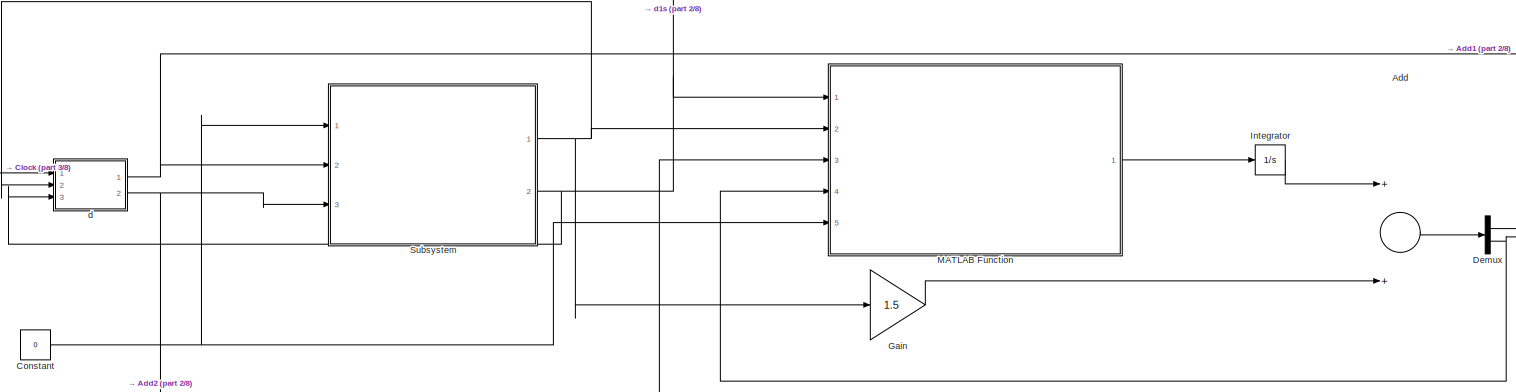
[diagram: root canvas - part 1/8, top left region]
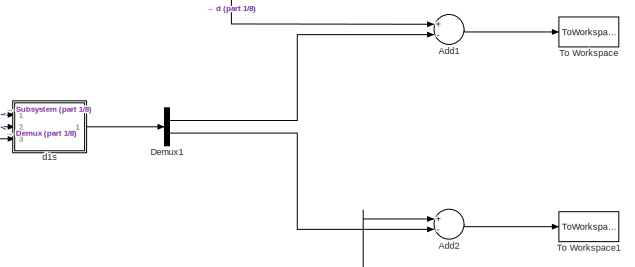
[diagram: root canvas - part 2/8, top center region]
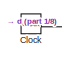
[diagram: root canvas - part 3/8, top left region]
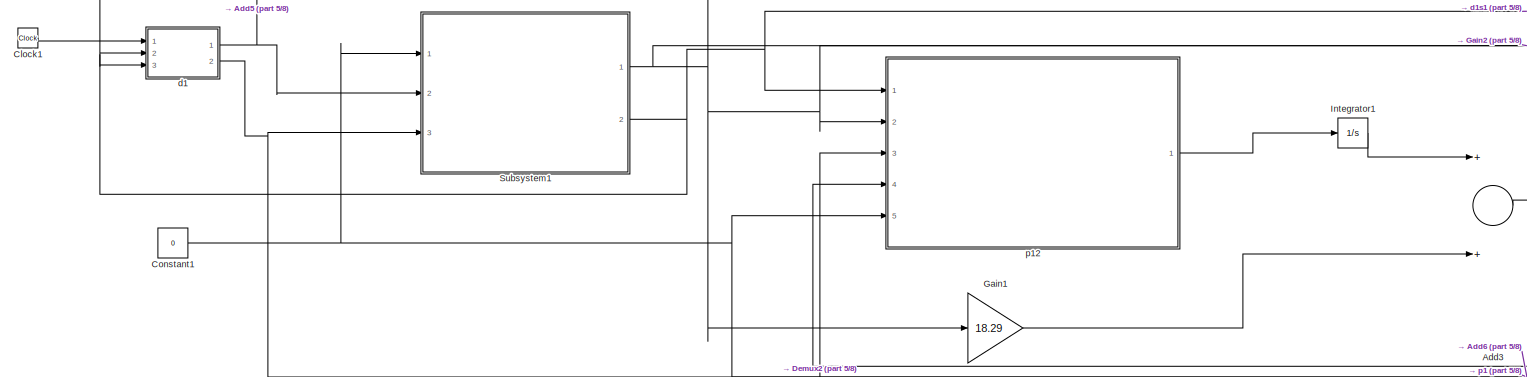
[diagram: root canvas - part 4/8, middle left region]
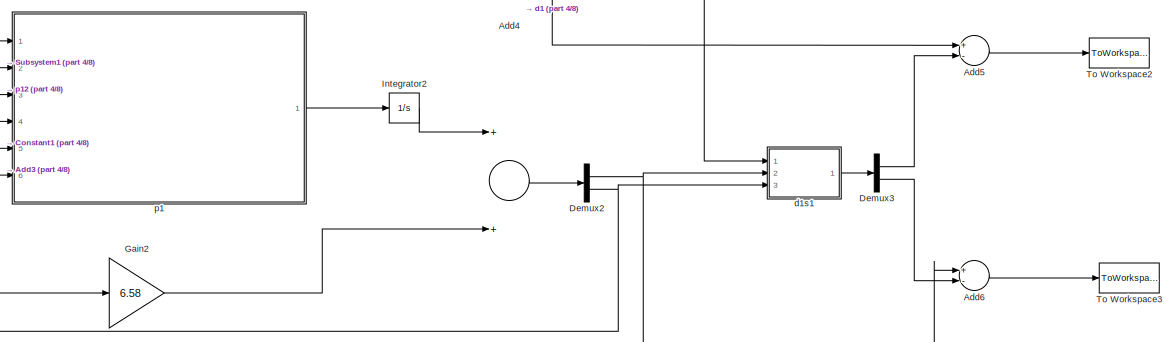
[diagram: root canvas - part 5/8, central region]
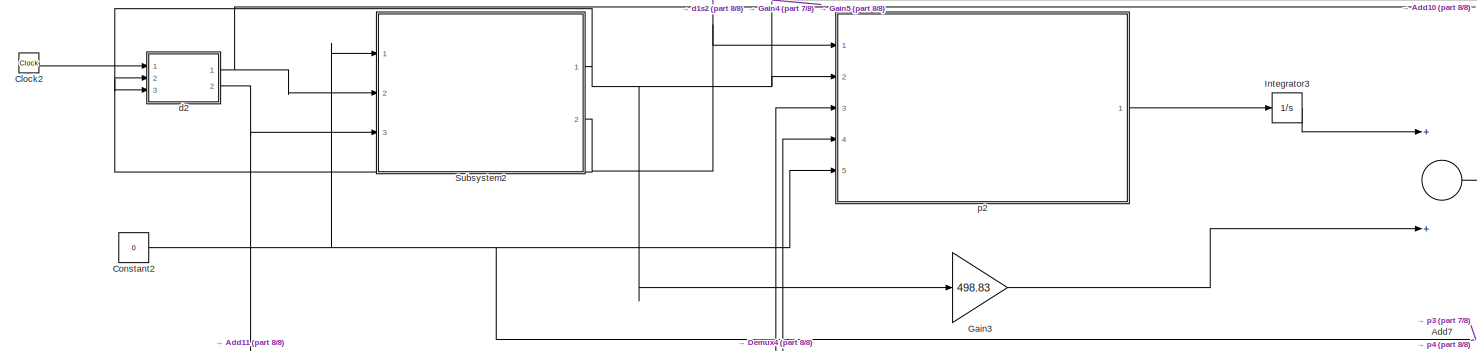
[diagram: root canvas - part 6/8, bottom left region]
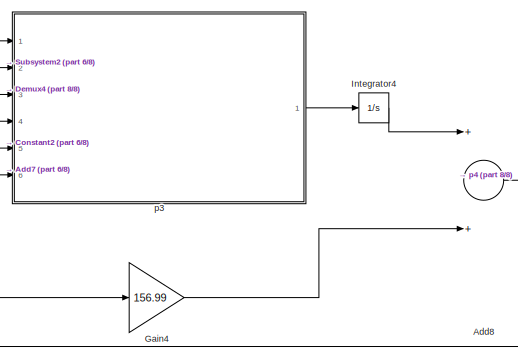
[diagram: root canvas - part 7/8, bottom center region]
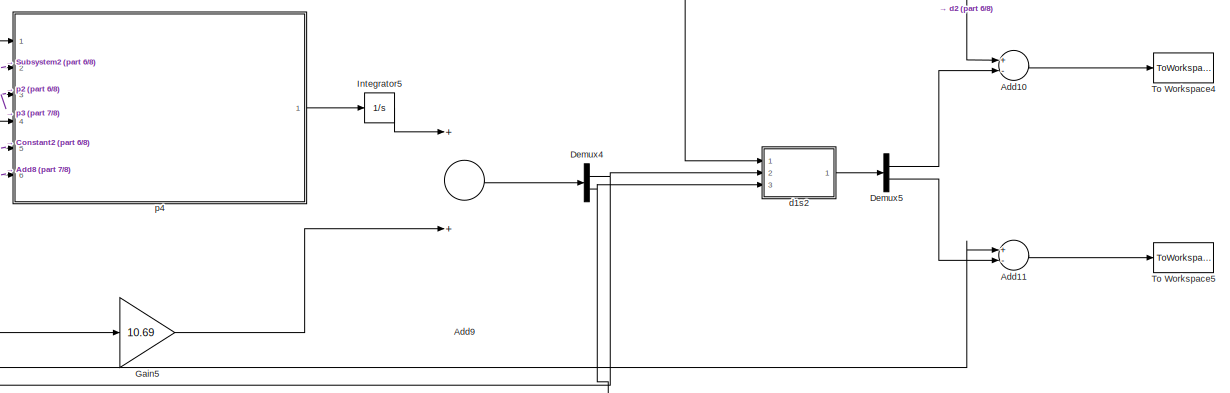
[diagram: root canvas - part 8/8, bottom right region]
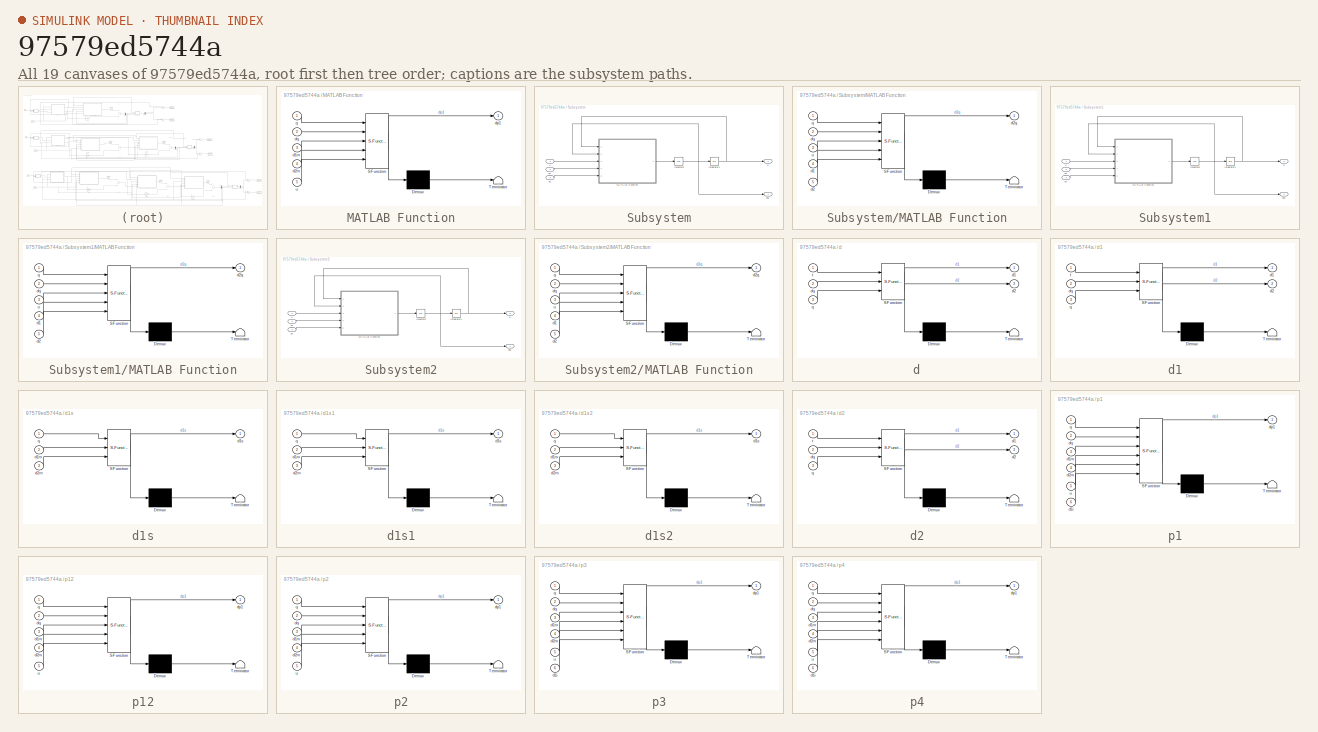
[diagram: thumbnail index - all 19 canvases of the model, root first then tree order]
MODEL slx_97579ed5744a
KIND model
CONFIG AbsTol = auto
CONFIG EnableMultiTasking = off
CONFIG FixedStep = 0.0025
CONFIG MaxStep = auto
CONFIG MinStep = auto
CONFIG RelTol = 1e-3
CONFIG SampleTimeConstraint = Unconstrained
CONFIG Solver = FixedStepAuto
CONFIG SolverName = FixedStepAuto
CONFIG StartTime = 0.0
CONFIG StopTime = 25
BLOCK [Sum] Add
  InputSameDT = off
  OutDataTypeStr = Inherit: Inherit via internal rule
  Ports = [2, 1]
  SaturateOnIntegerOverflow = off
BLOCK [Sum] Add1
  InputSameDT = off
  Inputs = +-
  OutDataTypeStr = Inherit: Inherit via internal rule
  Ports = [2, 1]
  SaturateOnIntegerOverflow = off
BLOCK [Sum] Add10
  InputSameDT = off
  Inputs = +-
  OutDataTypeStr = Inherit: Inherit via internal rule
  Ports = [2, 1]
  SaturateOnIntegerOverflow = off
BLOCK [Sum] Add11
  InputSameDT = off
  Inputs = +-
  OutDataTypeStr = Inherit: Inherit via internal rule
  Ports = [2, 1]
  SaturateOnIntegerOverflow = off
BLOCK [Sum] Add2
  InputSameDT = off
  Inputs = +-
  OutDataTypeStr = Inherit: Inherit via internal rule
  Ports = [2, 1]
  SaturateOnIntegerOverflow = off
BLOCK [Sum] Add3
  InputSameDT = off
  OutDataTypeStr = Inherit: Inherit via internal rule
  Ports = [2, 1]
  SaturateOnIntegerOverflow = off
BLOCK [Sum] Add4
  InputSameDT = off
  OutDataTypeStr = Inherit: Inherit via internal rule
  Ports = [2, 1]
  SaturateOnIntegerOverflow = off
BLOCK [Sum] Add5
  InputSameDT = off
  Inputs = +-
  OutDataTypeStr = Inherit: Inherit via internal rule
  Ports = [2, 1]
  SaturateOnIntegerOverflow = off
BLOCK [Sum] Add6
  InputSameDT = off
  Inputs = +-
  OutDataTypeStr = Inherit: Inherit via internal rule
  Ports = [2, 1]
  SaturateOnIntegerOverflow = off
BLOCK [Sum] Add7
  InputSameDT = off
  OutDataTypeStr = Inherit: Inherit via internal rule
  Ports = [2, 1]
  SaturateOnIntegerOverflow = off
BLOCK [Sum] Add8
  InputSameDT = off
  OutDataTypeStr = Inherit: Inherit via internal rule
  Ports = [2, 1]
  SaturateOnIntegerOverflow = off
BLOCK [Sum] Add9
  InputSameDT = off
  OutDataTypeStr = Inherit: Inherit via internal rule
  Ports = [2, 1]
  SaturateOnIntegerOverflow = off
BLOCK [Clock] Clock
BLOCK [Clock] Clock1
BLOCK [Clock] Clock2
BLOCK [Constant] Constant
  Value = 0
BLOCK [Constant] Constant1
  Value = 0
BLOCK [Constant] Constant2
  Value = 0
BLOCK [Demux] Demux
  DisplayOption = bar
  Outputs = 2
  Ports = [1, 2]
BLOCK [Demux] Demux1
  DisplayOption = bar
  Outputs = 2
  Ports = [1, 2]
BLOCK [Demux] Demux2
  DisplayOption = bar
  Outputs = 2
  Ports = [1, 2]
BLOCK [Demux] Demux3
  DisplayOption = bar
  Outputs = 2
  Ports = [1, 2]
BLOCK [Demux] Demux4
  DisplayOption = bar
  Outputs = 2
  Ports = [1, 2]
BLOCK [Demux] Demux5
  DisplayOption = bar
  Outputs = 2
  Ports = [1, 2]
BLOCK [Gain] Gain
  Gain = 1.5
  OutDataTypeStr = Inherit: Inherit via internal rule
  ParamDataTypeStr = Inherit: Inherit via internal rule
  SaturateOnIntegerOverflow = off
BLOCK [Gain] Gain1
  Gain = 18.29
  OutDataTypeStr = Inherit: Inherit via internal rule
  ParamDataTypeStr = Inherit: Inherit via internal rule
  SaturateOnIntegerOverflow = off
BLOCK [Gain] Gain2
  Gain = 6.58
  OutDataTypeStr = Inherit: Inherit via internal rule
  ParamDataTypeStr = Inherit: Inherit via internal rule
  SaturateOnIntegerOverflow = off
BLOCK [Gain] Gain3
  Gain = 498.83
  OutDataTypeStr = Inherit: Inherit via internal rule
  ParamDataTypeStr = Inherit: Inherit via internal rule
  SaturateOnIntegerOverflow = off
BLOCK [Gain] Gain4
  Gain = 156.99
  OutDataTypeStr = Inherit: Inherit via internal rule
  ParamDataTypeStr = Inherit: Inherit via internal rule
  SaturateOnIntegerOverflow = off
BLOCK [Gain] Gain5
  Gain = 10.69
  OutDataTypeStr = Inherit: Inherit via internal rule
  ParamDataTypeStr = Inherit: Inherit via internal rule
  SaturateOnIntegerOverflow = off
BLOCK [Integrator] Integrator
  InitialCondition = [0;0]
  Ports = [1, 1]
BLOCK [Integrator] Integrator1
  InitialCondition = [0;0]
  Ports = [1, 1]
BLOCK [Integrator] Integrator2
  InitialCondition = [0;0]
  Ports = [1, 1]
BLOCK [Integrator] Integrator3
  InitialCondition = [0;0]
  Ports = [1, 1]
BLOCK [Integrator] Integrator4
  InitialCondition = [0;0]
  Ports = [1, 1]
BLOCK [Integrator] Integrator5
  InitialCondition = [0;0]
  Ports = [1, 1]
BLOCK [SubSystem] MATLAB Function
  ErrorFcn = Stateflow.Translate.translate
  PermitHierarchicalResolution = ExplicitOnly
  Ports = [5, 1]
  RequestExecContextInheritance = off
  SFBlockType = MATLAB Function
  TreatAsAtomicUnit = on
BLOCK [Demux] MATLAB Function/ Demux 
  Outputs = 1
  Ports = [1, 1]
BLOCK [S-Function] MATLAB Function/ SFunction 
  EnableBusSupport = on
  FunctionName = sf_sfun
  PortCounts = [5 2]
  Ports = [5, 2]
  SFcnIsStateOwnerBlock = off
  SFunctionDeploymentMode = off
  Tag = Stateflow S-Function HODB 1
BLOCK [Terminator] MATLAB Function/ Terminator 
BLOCK [Inport] MATLAB Function/d1m
  IconDisplay = Port number
  Port = 3
BLOCK [Inport] MATLAB Function/d2m
  IconDisplay = Port number
  Port = 4
BLOCK [Outport] MATLAB Function/dp1
  IconDisplay = Port number
BLOCK [Inport] MATLAB Function/dq
  IconDisplay = Port number
  Port = 2
BLOCK [Inport] MATLAB Function/q
  IconDisplay = Port number
BLOCK [Inport] MATLAB Function/u
  IconDisplay = Port number
  Port = 5
BLOCK [SubSystem] Subsystem
  Ports = [3, 2]
  RequestExecContextInheritance = off
BLOCK [Integrator] Subsystem/Integrator
  InitialCondition = [-0.01;0.05]
  Ports = [1, 1]
BLOCK [Integrator] Subsystem/Integrator1
  InitialCondition = [-1.4208;-0.1]
  Ports = [1, 1]
BLOCK [SubSystem] Subsystem/MATLAB Function
  ErrorFcn = Stateflow.Translate.translate
  PermitHierarchicalResolution = ExplicitOnly
  Ports = [5, 1]
  RequestExecContextInheritance = off
  SFBlockType = MATLAB Function
  TreatAsAtomicUnit = on
BLOCK [Demux] Subsystem/MATLAB Function/ Demux 
  Outputs = 1
  Ports = [1, 1]
BLOCK [S-Function] Subsystem/MATLAB Function/ SFunction 
  EnableBusSupport = on
  FunctionName = sf_sfun
  PortCounts = [5 2]
  Ports = [5, 2]
  SFcnIsStateOwnerBlock = off
  SFunctionDeploymentMode = off
  Tag = Stateflow S-Function HODB 2
BLOCK [Terminator] Subsystem/MATLAB Function/ Terminator 
BLOCK [Inport] Subsystem/MATLAB Function/d1
  IconDisplay = Port number
  Port = 4
BLOCK [Inport] Subsystem/MATLAB Function/d2
  IconDisplay = Port number
  Port = 5
BLOCK [Outport] Subsystem/MATLAB Function/d2q
  IconDisplay = Port number
BLOCK [Inport] Subsystem/MATLAB Function/dq
  IconDisplay = Port number
  Port = 2
BLOCK [Inport] Subsystem/MATLAB Function/q
  IconDisplay = Port number
BLOCK [Inport] Subsystem/MATLAB Function/u
  IconDisplay = Port number
  Port = 3
BLOCK [Inport] Subsystem/d1
  IconDisplay = Port number
  Port = 2
BLOCK [Inport] Subsystem/d2
  IconDisplay = Port number
  Port = 3
BLOCK [Outport] Subsystem/dq1
  IconDisplay = Port number
BLOCK [Outport] Subsystem/q
  IconDisplay = Port number
  Port = 2
BLOCK [Inport] Subsystem/u
  IconDisplay = Port number
BLOCK [SubSystem] Subsystem1
  Ports = [3, 2]
  RequestExecContextInheritance = off
BLOCK [Integrator] Subsystem1/Integrator
  InitialCondition = [-0.01;0.05]
  Ports = [1, 1]
BLOCK [Integrator] Subsystem1/Integrator1
  InitialCondition = [-1.4208;-0.1]
  Ports = [1, 1]
BLOCK [SubSystem] Subsystem1/MATLAB Function
  ErrorFcn = Stateflow.Translate.translate
  PermitHierarchicalResolution = ExplicitOnly
  Ports = [5, 1]
  RequestExecContextInheritance = off
  SFBlockType = MATLAB Function
  TreatAsAtomicUnit = on
BLOCK [Demux] Subsystem1/MATLAB Function/ Demux 
  Outputs = 1
  Ports = [1, 1]
BLOCK [S-Function] Subsystem1/MATLAB Function/ SFunction 
  EnableBusSupport = on
  FunctionName = sf_sfun
  PortCounts = [5 2]
  Ports = [5, 2]
  SFcnIsStateOwnerBlock = off
  SFunctionDeploymentMode = off
  Tag = Stateflow S-Function HODB 5
BLOCK [Terminator] Subsystem1/MATLAB Function/ Terminator 
BLOCK [Inport] Subsystem1/MATLAB Function/d1
  IconDisplay = Port number
  Port = 4
BLOCK [Inport] Subsystem1/MATLAB Function/d2
  IconDisplay = Port number
  Port = 5
BLOCK [Outport] Subsystem1/MATLAB Function/d2q
  IconDisplay = Port number
BLOCK [Inport] Subsystem1/MATLAB Function/dq
  IconDisplay = Port number
  Port = 2
BLOCK [Inport] Subsystem1/MATLAB Function/q
  IconDisplay = Port number
BLOCK [Inport] Subsystem1/MATLAB Function/u
  IconDisplay = Port number
  Port = 3
BLOCK [Inport] Subsystem1/d1
  IconDisplay = Port number
  Port = 2
BLOCK [Inport] Subsystem1/d2
  IconDisplay = Port number
  Port = 3
BLOCK [Outport] Subsystem1/dq1
  IconDisplay = Port number
BLOCK [Outport] Subsystem1/q
  IconDisplay = Port number
  Port = 2
BLOCK [Inport] Subsystem1/u
  IconDisplay = Port number
BLOCK [SubSystem] Subsystem2
  Ports = [3, 2]
  RequestExecContextInheritance = off
BLOCK [Integrator] Subsystem2/Integrator
  InitialCondition = [-0.01;0.05]
  Ports = [1, 1]
BLOCK [Integrator] Subsystem2/Integrator1
  InitialCondition = [-1.4208;-0.1]
  Ports = [1, 1]
BLOCK [SubSystem] Subsystem2/MATLAB Function
  ErrorFcn = Stateflow.Translate.translate
  PermitHierarchicalResolution = ExplicitOnly
  Ports = [5, 1]
  RequestExecContextInheritance = off
  SFBlockType = MATLAB Function
  TreatAsAtomicUnit = on
BLOCK [Demux] Subsystem2/MATLAB Function/ Demux 
  Outputs = 1
  Ports = [1, 1]
BLOCK [S-Function] Subsystem2/MATLAB Function/ SFunction 
  EnableBusSupport = on
  FunctionName = sf_sfun
  PortCounts = [5 2]
  Ports = [5, 2]
  SFcnIsStateOwnerBlock = off
  SFunctionDeploymentMode = off
  Tag = Stateflow S-Function HODB 11
BLOCK [Terminator] Subsystem2/MATLAB Function/ Terminator 
BLOCK [Inport] Subsystem2/MATLAB Function/d1
  IconDisplay = Port number
  Port = 4
BLOCK [Inport] Subsystem2/MATLAB Function/d2
  IconDisplay = Port number
  Port = 5
BLOCK [Outport] Subsystem2/MATLAB Function/d2q
  IconDisplay = Port number
BLOCK [Inport] Subsystem2/MATLAB Function/dq
  IconDisplay = Port number
  Port = 2
BLOCK [Inport] Subsystem2/MATLAB Function/q
  IconDisplay = Port number
BLOCK [Inport] Subsystem2/MATLAB Function/u
  IconDisplay = Port number
  Port = 3
BLOCK [Inport] Subsystem2/d1
  IconDisplay = Port number
  Port = 2
BLOCK [Inport] Subsystem2/d2
  IconDisplay = Port number
  Port = 3
BLOCK [Outport] Subsystem2/dq1
  IconDisplay = Port number
BLOCK [Outport] Subsystem2/q
  IconDisplay = Port number
  Port = 2
BLOCK [Inport] Subsystem2/u
  IconDisplay = Port number
BLOCK [ToWorkspace] To Workspace
  FixptAsFi = on
  MaxDataPoints = inf
  Ports = [1]
  SampleTime = -1
  Save2DSignal = 3-D array (concatenate along third dimension)
  VariableName = q11II
BLOCK [ToWorkspace] To Workspace1
  FixptAsFi = on
  MaxDataPoints = inf
  Ports = [1]
  SampleTime = -1
  Save2DSignal = 3-D array (concatenate along third dimension)
  VariableName = q21II
BLOCK [ToWorkspace] To Workspace2
  FixptAsFi = on
  MaxDataPoints = inf
  Ports = [1]
  SampleTime = -1
  Save2DSignal = 3-D array (concatenate along third dimension)
  VariableName = q12II
BLOCK [ToWorkspace] To Workspace3
  FixptAsFi = on
  MaxDataPoints = inf
  Ports = [1]
  SampleTime = -1
  Save2DSignal = 3-D array (concatenate along third dimension)
  VariableName = q22II
BLOCK [ToWorkspace] To Workspace4
  FixptAsFi = on
  MaxDataPoints = inf
  Ports = [1]
  SampleTime = -1
  Save2DSignal = 3-D array (concatenate along third dimension)
  VariableName = q13II
BLOCK [ToWorkspace] To Workspace5
  FixptAsFi = on
  MaxDataPoints = inf
  Ports = [1]
  SampleTime = -1
  Save2DSignal = 3-D array (concatenate along third dimension)
  VariableName = q23II
BLOCK [SubSystem] d
  ErrorFcn = Stateflow.Translate.translate
  PermitHierarchicalResolution = ExplicitOnly
  Ports = [3, 2]
  RequestExecContextInheritance = off
  SFBlockType = MATLAB Function
  TreatAsAtomicUnit = on
BLOCK [Demux] d/ Demux 
  Outputs = 1
  Ports = [1, 1]
BLOCK [S-Function] d/ SFunction 
  EnableBusSupport = on
  FunctionName = sf_sfun
  PortCounts = [3 3]
  Ports = [3, 3]
  SFcnIsStateOwnerBlock = off
  SFunctionDeploymentMode = off
  Tag = Stateflow S-Function HODB 3
BLOCK [Terminator] d/ Terminator 
BLOCK [Outport] d/d1
  IconDisplay = Port number
BLOCK [Outport] d/d2
  IconDisplay = Port number
  Port = 2
BLOCK [Inport] d/dq
  IconDisplay = Port number
  Port = 2
BLOCK [Inport] d/q
  IconDisplay = Port number
  Port = 3
BLOCK [Inport] d/t
  IconDisplay = Port number
BLOCK [SubSystem] d1
  ErrorFcn = Stateflow.Translate.translate
  PermitHierarchicalResolution = ExplicitOnly
  Ports = [3, 2]
  RequestExecContextInheritance = off
  SFBlockType = MATLAB Function
  TreatAsAtomicUnit = on
BLOCK [Demux] d1/ Demux 
  Outputs = 1
  Ports = [1, 1]
BLOCK [S-Function] d1/ SFunction 
  EnableBusSupport = on
  FunctionName = sf_sfun
  PortCounts = [3 3]
  Ports = [3, 3]
  SFcnIsStateOwnerBlock = off
  SFunctionDeploymentMode = off
  Tag = Stateflow S-Function HODB 6
BLOCK [Terminator] d1/ Terminator 
BLOCK [Outport] d1/d1
  IconDisplay = Port number
BLOCK [Outport] d1/d2
  IconDisplay = Port number
  Port = 2
BLOCK [Inport] d1/dq
  IconDisplay = Port number
  Port = 2
BLOCK [Inport] d1/q
  IconDisplay = Port number
  Port = 3
BLOCK [Inport] d1/t
  IconDisplay = Port number
BLOCK [SubSystem] d1s
  ErrorFcn = Stateflow.Translate.translate
  PermitHierarchicalResolution = ExplicitOnly
  Ports = [3, 1]
  RequestExecContextInheritance = off
  SFBlockType = MATLAB Function
  TreatAsAtomicUnit = on
BLOCK [Demux] d1s/ Demux 
  Outputs = 1
  Ports = [1, 1]
BLOCK [S-Function] d1s/ SFunction 
  EnableBusSupport = on
  FunctionName = sf_sfun
  PortCounts = [3 2]
  Ports = [3, 2]
  SFcnIsStateOwnerBlock = off
  SFunctionDeploymentMode = off
  Tag = Stateflow S-Function HODB 4
BLOCK [Terminator] d1s/ Terminator 
BLOCK [Inport] d1s/d1m
  IconDisplay = Port number
  Port = 2
BLOCK [Outport] d1s/d1s
  IconDisplay = Port number
BLOCK [Inport] d1s/d2m
  IconDisplay = Port number
  Port = 3
BLOCK [Inport] d1s/q
  IconDisplay = Port number
BLOCK [SubSystem] d1s1
  ErrorFcn = Stateflow.Translate.translate
  PermitHierarchicalResolution = ExplicitOnly
  Ports = [3, 1]
  RequestExecContextInheritance = off
  SFBlockType = MATLAB Function
  TreatAsAtomicUnit = on
BLOCK [Demux] d1s1/ Demux 
  Outputs = 1
  Ports = [1, 1]
BLOCK [S-Function] d1s1/ SFunction 
  EnableBusSupport = on
  FunctionName = sf_sfun
  PortCounts = [3 2]
  Ports = [3, 2]
  SFcnIsStateOwnerBlock = off
  SFunctionDeploymentMode = off
  Tag = Stateflow S-Function HODB 9
BLOCK [Terminator] d1s1/ Terminator 
BLOCK [Inport] d1s1/d1m
  IconDisplay = Port number
  Port = 2
BLOCK [Outport] d1s1/d1s
  IconDisplay = Port number
BLOCK [Inport] d1s1/d2m
  IconDisplay = Port number
  Port = 3
BLOCK [Inport] d1s1/q
  IconDisplay = Port number
BLOCK [SubSystem] d1s2
  ErrorFcn = Stateflow.Translate.translate
  PermitHierarchicalResolution = ExplicitOnly
  Ports = [3, 1]
  RequestExecContextInheritance = off
  SFBlockType = MATLAB Function
  TreatAsAtomicUnit = on
BLOCK [Demux] d1s2/ Demux 
  Outputs = 1
  Ports = [1, 1]
BLOCK [S-Function] d1s2/ SFunction 
  EnableBusSupport = on
  FunctionName = sf_sfun
  PortCounts = [3 2]
  Ports = [3, 2]
  SFcnIsStateOwnerBlock = off
  SFunctionDeploymentMode = off
  Tag = Stateflow S-Function HODB 15
BLOCK [Terminator] d1s2/ Terminator 
BLOCK [Inport] d1s2/d1m
  IconDisplay = Port number
  Port = 2
BLOCK [Outport] d1s2/d1s
  IconDisplay = Port number
BLOCK [Inport] d1s2/d2m
  IconDisplay = Port number
  Port = 3
BLOCK [Inport] d1s2/q
  IconDisplay = Port number
BLOCK [SubSystem] d2
  ErrorFcn = Stateflow.Translate.translate
  PermitHierarchicalResolution = ExplicitOnly
  Ports = [3, 2]
  RequestExecContextInheritance = off
  SFBlockType = MATLAB Function
  TreatAsAtomicUnit = on
BLOCK [Demux] d2/ Demux 
  Outputs = 1
  Ports = [1, 1]
BLOCK [S-Function] d2/ SFunction 
  EnableBusSupport = on
  FunctionName = sf_sfun
  PortCounts = [3 3]
  Ports = [3, 3]
  SFcnIsStateOwnerBlock = off
  SFunctionDeploymentMode = off
  Tag = Stateflow S-Function HODB 12
BLOCK [Terminator] d2/ Terminator 
BLOCK [Outport] d2/d1
  IconDisplay = Port number
BLOCK [Outport] d2/d2
  IconDisplay = Port number
  Port = 2
BLOCK [Inport] d2/dq
  IconDisplay = Port number
  Port = 2
BLOCK [Inport] d2/q
  IconDisplay = Port number
  Port = 3
BLOCK [Inport] d2/t
  IconDisplay = Port number
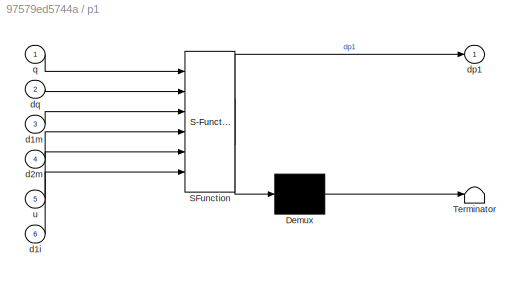
BLOCK [SubSystem] p1
  ErrorFcn = Stateflow.Translate.translate
  PermitHierarchicalResolution = ExplicitOnly
  Ports = [6, 1]
  RequestExecContextInheritance = off
  SFBlockType = MATLAB Function
  TreatAsAtomicUnit = on
BLOCK [Demux] p1/ Demux 
  Outputs = 1
  Ports = [1, 1]
BLOCK [S-Function] p1/ SFunction 
  EnableBusSupport = on
  FunctionName = sf_sfun
  PortCounts = [6 2]
  Ports = [6, 2]
  SFcnIsStateOwnerBlock = off
  SFunctionDeploymentMode = off
  Tag = Stateflow S-Function HODB 8
BLOCK [Terminator] p1/ Terminator 
BLOCK [Inport] p1/d1i
  IconDisplay = Port number
  Port = 6
BLOCK [Inport] p1/d1m
  IconDisplay = Port number
  Port = 3
BLOCK [Inport] p1/d2m
  IconDisplay = Port number
  Port = 4
BLOCK [Outport] p1/dp1
  IconDisplay = Port number
BLOCK [Inport] p1/dq
  IconDisplay = Port number
  Port = 2
BLOCK [Inport] p1/q
  IconDisplay = Port number
BLOCK [Inport] p1/u
  IconDisplay = Port number
  Port = 5
BLOCK [SubSystem] p12
  ErrorFcn = Stateflow.Translate.translate
  PermitHierarchicalResolution = ExplicitOnly
  Ports = [5, 1]
  RequestExecContextInheritance = off
  SFBlockType = MATLAB Function
  TreatAsAtomicUnit = on
BLOCK [Demux] p12/ Demux 
  Outputs = 1
  Ports = [1, 1]
BLOCK [S-Function] p12/ SFunction 
  EnableBusSupport = on
  FunctionName = sf_sfun
  PortCounts = [5 2]
  Ports = [5, 2]
  SFcnIsStateOwnerBlock = off
  SFunctionDeploymentMode = off
  Tag = Stateflow S-Function HODB 7
BLOCK [Terminator] p12/ Terminator 
BLOCK [Inport] p12/d1m
  IconDisplay = Port number
  Port = 3
BLOCK [Inport] p12/d2m
  IconDisplay = Port number
  Port = 4
BLOCK [Outport] p12/dp1
  IconDisplay = Port number
BLOCK [Inport] p12/dq
  IconDisplay = Port number
  Port = 2
BLOCK [Inport] p12/q
  IconDisplay = Port number
BLOCK [Inport] p12/u
  IconDisplay = Port number
  Port = 5
BLOCK [SubSystem] p2
  ErrorFcn = Stateflow.Translate.translate
  PermitHierarchicalResolution = ExplicitOnly
  Ports = [5, 1]
  RequestExecContextInheritance = off
  SFBlockType = MATLAB Function
  TreatAsAtomicUnit = on
BLOCK [Demux] p2/ Demux 
  Outputs = 1
  Ports = [1, 1]
BLOCK [S-Function] p2/ SFunction 
  EnableBusSupport = on
  FunctionName = sf_sfun
  PortCounts = [5 2]
  Ports = [5, 2]
  SFcnIsStateOwnerBlock = off
  SFunctionDeploymentMode = off
  Tag = Stateflow S-Function HODB 13
BLOCK [Terminator] p2/ Terminator 
BLOCK [Inport] p2/d1m
  IconDisplay = Port number
  Port = 3
BLOCK [Inport] p2/d2m
  IconDisplay = Port number
  Port = 4
BLOCK [Outport] p2/dp1
  IconDisplay = Port number
BLOCK [Inport] p2/dq
  IconDisplay = Port number
  Port = 2
BLOCK [Inport] p2/q
  IconDisplay = Port number
BLOCK [Inport] p2/u
  IconDisplay = Port number
  Port = 5
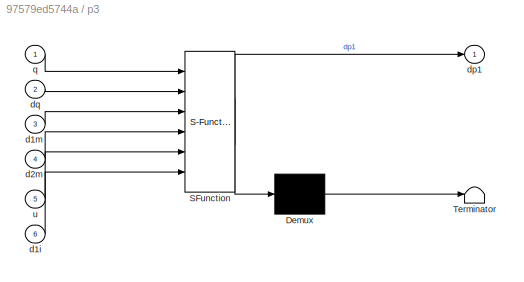
BLOCK [SubSystem] p3
  ErrorFcn = Stateflow.Translate.translate
  PermitHierarchicalResolution = ExplicitOnly
  Ports = [6, 1]
  RequestExecContextInheritance = off
  SFBlockType = MATLAB Function
  TreatAsAtomicUnit = on
BLOCK [Demux] p3/ Demux 
  Outputs = 1
  Ports = [1, 1]
BLOCK [S-Function] p3/ SFunction 
  EnableBusSupport = on
  FunctionName = sf_sfun
  PortCounts = [6 2]
  Ports = [6, 2]
  SFcnIsStateOwnerBlock = off
  SFunctionDeploymentMode = off
  Tag = Stateflow S-Function HODB 10
BLOCK [Terminator] p3/ Terminator 
BLOCK [Inport] p3/d1i
  IconDisplay = Port number
  Port = 6
BLOCK [Inport] p3/d1m
  IconDisplay = Port number
  Port = 3
BLOCK [Inport] p3/d2m
  IconDisplay = Port number
  Port = 4
BLOCK [Outport] p3/dp1
  IconDisplay = Port number
BLOCK [Inport] p3/dq
  IconDisplay = Port number
  Port = 2
BLOCK [Inport] p3/q
  IconDisplay = Port number
BLOCK [Inport] p3/u
  IconDisplay = Port number
  Port = 5
BLOCK [SubSystem] p4
  ErrorFcn = Stateflow.Translate.translate
  PermitHierarchicalResolution = ExplicitOnly
  Ports = [6, 1]
  RequestExecContextInheritance = off
  SFBlockType = MATLAB Function
  TreatAsAtomicUnit = on
BLOCK [Demux] p4/ Demux 
  Outputs = 1
  Ports = [1, 1]
BLOCK [S-Function] p4/ SFunction 
  EnableBusSupport = on
  FunctionName = sf_sfun
  PortCounts = [6 2]
  Ports = [6, 2]
  SFcnIsStateOwnerBlock = off
  SFunctionDeploymentMode = off
  Tag = Stateflow S-Function HODB 14
BLOCK [Terminator] p4/ Terminator 
BLOCK [Inport] p4/d1i
  IconDisplay = Port number
  Port = 6
BLOCK [Inport] p4/d1m
  IconDisplay = Port number
  Port = 3
BLOCK [Inport] p4/d2m
  IconDisplay = Port number
  Port = 4
BLOCK [Outport] p4/dp1
  IconDisplay = Port number
BLOCK [Inport] p4/dq
  IconDisplay = Port number
  Port = 2
BLOCK [Inport] p4/q
  IconDisplay = Port number
BLOCK [Inport] p4/u
  IconDisplay = Port number
  Port = 5
LINE Add10:1 -> To Workspace4:1
LINE Add11:1 -> To Workspace5:1
LINE Add1:1 -> To Workspace:1
LINE Add2:1 -> To Workspace1:1
LINE Add3:1 -> p1:6
LINE Add4:1 -> Demux2:1
LINE Add5:1 -> To Workspace2:1
LINE Add6:1 -> To Workspace3:1
LINE Add7:1 -> p3:6
LINE Add8:1 -> p4:6
LINE Add9:1 -> Demux4:1
LINE Add:1 -> Demux:1
LINE Clock1:1 -> d1:1
LINE Clock2:1 -> d2:1
LINE Clock:1 -> d:1
NET Constant1:1 -> Subsystem1:1, p12:5, p1:5
NET Constant2:1 -> Subsystem2:1, p2:5, p3:5, p4:5
NET Constant:1 -> MATLAB Function:5, Subsystem:1
LINE Demux1:1 -> Add1:2
LINE Demux1:2 -> Add2:2
NET Demux2:1 -> d1s1:2, p12:3, p1:3
NET Demux2:2 -> d1s1:3, p12:4, p1:4
LINE Demux3:1 -> Add5:2
LINE Demux3:2 -> Add6:2
NET Demux4:1 -> d1s2:2, p2:3, p3:3, p4:3
NET Demux4:2 -> d1s2:3, p2:4, p3:4, p4:4
LINE Demux5:1 -> Add10:2
LINE Demux5:2 -> Add11:2
NET Demux:1 -> MATLAB Function:3, d1s:2
NET Demux:2 -> MATLAB Function:4, d1s:3
LINE Gain1:1 -> Add3:2
LINE Gain2:1 -> Add4:2
LINE Gain3:1 -> Add7:2
LINE Gain4:1 -> Add8:2
LINE Gain5:1 -> Add9:2
LINE Gain:1 -> Add:2
LINE Integrator1:1 -> Add3:1
LINE Integrator2:1 -> Add4:1
LINE Integrator3:1 -> Add7:1
LINE Integrator4:1 -> Add8:1
LINE Integrator5:1 -> Add9:1
LINE Integrator:1 -> Add:1
LINE MATLAB Function:1 -> Integrator:1
NET Subsystem/Integrator1:1 -> Subsystem/MATLAB Function:1, Subsystem/q:1
NET Subsystem/Integrator:1 -> Subsystem/Integrator1:1, Subsystem/MATLAB Function:2, Subsystem/dq1:1
LINE Subsystem/MATLAB Function:1 -> Subsystem/Integrator:1
LINE Subsystem/d1:1 -> Subsystem/MATLAB Function:4
LINE Subsystem/d2:1 -> Subsystem/MATLAB Function:5
LINE Subsystem/u:1 -> Subsystem/MATLAB Function:3
NET Subsystem1/Integrator1:1 -> Subsystem1/MATLAB Function:1, Subsystem1/q:1
NET Subsystem1/Integrator:1 -> Subsystem1/Integrator1:1, Subsystem1/MATLAB Function:2, Subsystem1/dq1:1
LINE Subsystem1/MATLAB Function:1 -> Subsystem1/Integrator:1
LINE Subsystem1/d1:1 -> Subsystem1/MATLAB Function:4
LINE Subsystem1/d2:1 -> Subsystem1/MATLAB Function:5
LINE Subsystem1/u:1 -> Subsystem1/MATLAB Function:3
NET Subsystem1:1 -> Gain1:1, Gain2:1, d1:2, p12:2, p1:2
NET Subsystem1:2 -> d1:3, d1s1:1, p12:1, p1:1
NET Subsystem2/Integrator1:1 -> Subsystem2/MATLAB Function:1, Subsystem2/q:1
NET Subsystem2/Integrator:1 -> Subsystem2/Integrator1:1, Subsystem2/MATLAB Function:2, Subsystem2/dq1:1
LINE Subsystem2/MATLAB Function:1 -> Subsystem2/Integrator:1
LINE Subsystem2/d1:1 -> Subsystem2/MATLAB Function:4
LINE Subsystem2/d2:1 -> Subsystem2/MATLAB Function:5
LINE Subsystem2/u:1 -> Subsystem2/MATLAB Function:3
NET Subsystem2:1 -> Gain3:1, Gain4:1, Gain5:1, d2:2, p2:2, p3:2, p4:2
NET Subsystem2:2 -> d1s2:1, d2:3, p2:1, p3:1, p4:1
NET Subsystem:1 -> Gain:1, MATLAB Function:2, d:2
NET Subsystem:2 -> MATLAB Function:1, d1s:1, d:3
NET d1:1 -> Add5:1, Subsystem1:2
NET d1:2 -> Add6:1, Subsystem1:3
LINE d1s1:1 -> Demux3:1
LINE d1s2:1 -> Demux5:1
LINE d1s:1 -> Demux1:1
NET d2:1 -> Add10:1, Subsystem2:2
NET d2:2 -> Add11:1, Subsystem2:3
NET d:1 -> Add1:1, Subsystem:2
NET d:2 -> Add2:1, Subsystem:3
LINE p12:1 -> Integrator1:1
LINE p1:1 -> Integrator2:1
LINE p2:1 -> Integrator3:1
LINE p3:1 -> Integrator4:1
LINE p4:1 -> Integrator5:1
note: NET lines group one-source signal fan-out (src -> all destinations, sorted); 1:1 wires keep LINE
CHART MATLAB Function states=1 transitions=1
  STATE_LABEL 'eML_blk_kernel()'
  STATE_LABEL 'SCRIPT:\nfunction dp1 = fcn(q,dq,d1m,d2m,u)\nL1=1.5;\nm1=1;\nm2=1;\nl1=1;\n% l2=2;\nlc1=0.5;\nlc2=1;\nI1=0.083;\nI2=0.33;\na0=m1*lc1^2+m2*(l1^2+lc2^2)+I1+I2;\nb0=2*m2*l1*lc2;\nc0=m2*lc2^2+I2;\nq1=q(1);\nq2=q(2);\nm11=a0+b0*cos(q2);\nm12=c0+0.5*b0*cos(q2);\nm21=m12;\nm22=c0;\nM=[m11 m12;m21 m22];\ng=9.81;\ndq1=dq(1);\ndq2=dq(2);\nh1=-m2*l1*lc2*sin(q2)*dq2^2-2*m2*l1*lc2*sin(q2)*dq1*dq2;\nh2=m2*l1*lc2*sin(q2)*dq1^2;\nphi1=(m1...<+122ch>'
CHART Subsystem/MATLAB Function states=1 transitions=1
  STATE_LABEL 'eML_blk_kernel()'
  STATE_LABEL 'SCRIPT:\nfunction d2q = fcn(q,dq,u,d1,d2)\nm1=1;\nm2=1;\nl1=1;\n% l2=2;\nlc1=0.5;\nlc2=1;\nI1=0.083;\nI2=0.33;\na0=m1*lc1^2+m2*(l1^2+lc2^2)+I1+I2;\nb0=2*m2*l1*lc2;\nc0=m2*lc2^2+I2;\nq1=q(1);\nq2=q(2);\nm11=a0+b0*cos(q2);\nm12=c0+0.5*b0*cos(q2);\nm21=m12;\nm22=c0;\ng=9.81;\ndq1=dq(1);\ndq2=dq(2);\nh1=-m2*l1*lc2*sin(q2)*dq2^2-2*m2*l1*lc2*sin(q2)*dq1*dq2;\nh2=m2*l1*lc2*sin(q2)*dq1^2;\nphi1=(m1*lc1+m2*l1)*g*cos(q1)+m2*lc2*g*...<+90ch>'  <repeated x3 — deduplicated; at blocks: MATLAB Function>
CHART d states=1 transitions=1
  STATE_LABEL 'eML_blk_kernel()'
  STATE_LABEL 'SCRIPT:\nfunction [d1,d2] = fcn(t,dq,q)\nd1=0.1*sin(t+pi/2)+0.04*sin(5.3*t)-0.05*dq(1)+0.01*q(1);\nd2=0.1*sin(t*2)+0.02*sin(4.6*t+0.5)-0.03*dq(2)+0.008*q(2);\n% d1=0.1*sin(t+pi/2)+0.04*sin(5.3*t);\n% d2=0.1*sin(t*2)+0.02*sin(4.6*t+0.5);\n% d1=0.05;\n% d2=0.03;\nend'  <repeated x3 — deduplicated; at blocks: d, d1, d2>
CHART d1s states=1 transitions=1
  STATE_LABEL 'eML_blk_kernel()'
  STATE_LABEL 'SCRIPT:\nfunction d1s = fcn(q,d1m,d2m)\nm1=1;\nm2=1;\nl1=1;\n% l2=2;\nlc1=0.5;\nlc2=1;\nI1=0.083;\nI2=0.33;\na0=m1*lc1^2+m2*(l1^2+lc2^2)+I1+I2;\nb0=2*m2*l1*lc2;\nc0=m2*lc2^2+I2;\n% q1=q(1);\nq2=q(2);\nm11=a0+b0*cos(q2);\nm12=c0+0.5*b0*cos(q2);\nm21=m12;\nm22=c0;\nM=[m11 m12;m21 m22];\nd1s=M*[d1m;d2m];\nend'  <repeated x3 — deduplicated; at blocks: d1s, d1s1, d1s2>
CHART Subsystem1/MATLAB Function states=1 transitions=1
  STATE_LABEL 'eML_blk_kernel()'
CHART d1 states=1 transitions=1
  STATE_LABEL 'eML_blk_kernel()'
CHART p12 states=1 transitions=1
  STATE_LABEL 'eML_blk_kernel()'
  STATE_LABEL 'SCRIPT:\nfunction dp1 = fcn(q,dq,d1m,d2m,u)\nL1=18.29;\nm1=1;\nm2=1;\nl1=1;\n% l2=2;\nlc1=0.5;\nlc2=1;\nI1=0.083;\nI2=0.33;\na0=m1*lc1^2+m2*(l1^2+lc2^2)+I1+I2;\nb0=2*m2*l1*lc2;\nc0=m2*lc2^2+I2;\nq1=q(1);\nq2=q(2);\nm11=a0+b0*cos(q2);\nm12=c0+0.5*b0*cos(q2);\nm21=m12;\nm22=c0;\nM=[m11 m12;m21 m22];\ng=9.81;\ndq1=dq(1);\ndq2=dq(2);\nh1=-m2*l1*lc2*sin(q2)*dq2^2-2*m2*l1*lc2*sin(q2)*dq1*dq2;\nh2=m2*l1*lc2*sin(q2)*dq1^2;\nphi1=(...<+124ch>'
CHART p1 states=1 transitions=1
  STATE_LABEL 'eML_blk_kernel()'
  STATE_LABEL 'SCRIPT:\nfunction dp1 = fcn(q,dq,d1m,d2m,u,d1i)\nL1=6.58;\nm1=1;\nm2=1;\nl1=1;\n% l2=2;\nlc1=0.5;\nlc2=1;\nI1=0.083;\nI2=0.33;\na0=m1*lc1^2+m2*(l1^2+lc2^2)+I1+I2;\nb0=2*m2*l1*lc2;\nc0=m2*lc2^2+I2;\nq1=q(1);\nq2=q(2);\nm11=a0+b0*cos(q2);\nm12=c0+0.5*b0*cos(q2);\nm21=m12;\nm22=c0;\nM=[m11 m12;m21 m22];\ng=9.81;\ndq1=dq(1);\ndq2=dq(2);\nh1=-m2*l1*lc2*sin(q2)*dq2^2-2*m2*l1*lc2*sin(q2)*dq1*dq2;\nh2=m2*l1*lc2*sin(q2)*dq1^2;\nphi...<+131ch>'
CHART d1s1 states=1 transitions=1
  STATE_LABEL 'eML_blk_kernel()'
CHART p3 states=1 transitions=1
  STATE_LABEL 'eML_blk_kernel()'
  STATE_LABEL 'SCRIPT:\nfunction dp1 = fcn(q,dq,d1m,d2m,u,d1i)\nL1=156.99;\nm1=1;\nm2=1;\nl1=1;\n% l2=2;\nlc1=0.5;\nlc2=1;\nI1=0.083;\nI2=0.33;\na0=m1*lc1^2+m2*(l1^2+lc2^2)+I1+I2;\nb0=2*m2*l1*lc2;\nc0=m2*lc2^2+I2;\nq1=q(1);\nq2=q(2);\nm11=a0+b0*cos(q2);\nm12=c0+0.5*b0*cos(q2);\nm21=m12;\nm22=c0;\nM=[m11 m12;m21 m22];\ng=9.81;\ndq1=dq(1);\ndq2=dq(2);\nh1=-m2*l1*lc2*sin(q2)*dq2^2-2*m2*l1*lc2*sin(q2)*dq1*dq2;\nh2=m2*l1*lc2*sin(q2)*dq1^2;\np...<+133ch>'
CHART Subsystem2/MATLAB Function states=1 transitions=1
  STATE_LABEL 'eML_blk_kernel()'
CHART d2 states=1 transitions=1
  STATE_LABEL 'eML_blk_kernel()'
CHART p2 states=1 transitions=1
  STATE_LABEL 'eML_blk_kernel()'
  STATE_LABEL 'SCRIPT:\nfunction dp1 = fcn(q,dq,d1m,d2m,u)\nL1=498.83;\nm1=1;\nm2=1;\nl1=1;\n% l2=2;\nlc1=0.5;\nlc2=1;\nI1=0.083;\nI2=0.33;\na0=m1*lc1^2+m2*(l1^2+lc2^2)+I1+I2;\nb0=2*m2*l1*lc2;\nc0=m2*lc2^2+I2;\nq1=q(1);\nq2=q(2);\nm11=a0+b0*cos(q2);\nm12=c0+0.5*b0*cos(q2);\nm21=m12;\nm22=c0;\nM=[m11 m12;m21 m22];\ng=9.81;\ndq1=dq(1);\ndq2=dq(2);\nh1=-m2*l1*lc2*sin(q2)*dq2^2-2*m2*l1*lc2*sin(q2)*dq1*dq2;\nh2=m2*l1*lc2*sin(q2)*dq1^2;\nphi1=...<+125ch>'
CHART p4 states=1 transitions=1
  STATE_LABEL 'eML_blk_kernel()'
  STATE_LABEL 'SCRIPT:\nfunction dp1 = fcn(q,dq,d1m,d2m,u,d1i)\nL1=10.69;\nm1=1;\nm2=1;\nl1=1;\n% l2=2;\nlc1=0.5;\nlc2=1;\nI1=0.083;\nI2=0.33;\na0=m1*lc1^2+m2*(l1^2+lc2^2)+I1+I2;\nb0=2*m2*l1*lc2;\nc0=m2*lc2^2+I2;\nq1=q(1);\nq2=q(2);\nm11=a0+b0*cos(q2);\nm12=c0+0.5*b0*cos(q2);\nm21=m12;\nm22=c0;\nM=[m11 m12;m21 m22];\ng=9.81;\ndq1=dq(1);\ndq2=dq(2);\nh1=-m2*l1*lc2*sin(q2)*dq2^2-2*m2*l1*lc2*sin(q2)*dq1*dq2;\nh2=m2*l1*lc2*sin(q2)*dq1^2;\nph...<+132ch>'
CHART d1s2 states=1 transitions=1
  STATE_LABEL 'eML_blk_kernel()'
